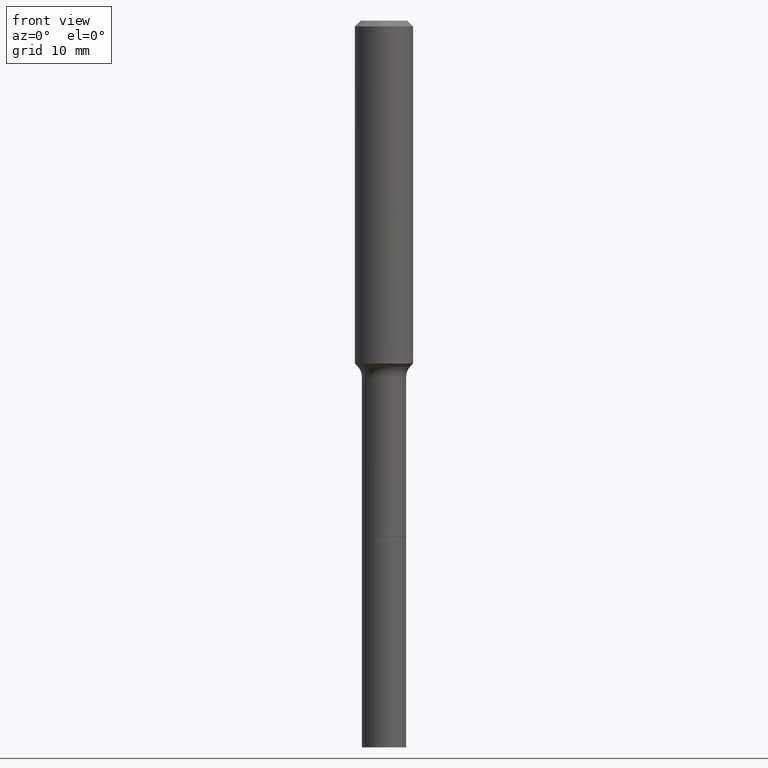
[diagram: clean part render]
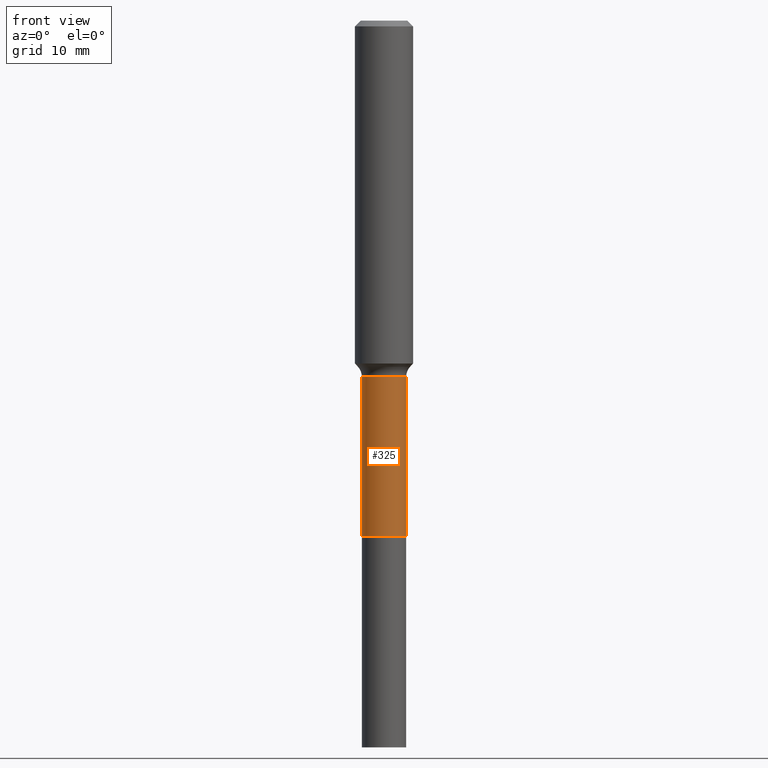
[diagram: same view with one face highlighted and labeled with its STEP entity id]
A machine part, front view. The second image highlights one B-rep face of the part: STEP entity #325.
In plain terms, the highlighted cylindrical surface (edge-blend (fillet) strip) has radius 3.0505 mm, axis along (-0, 0, 1).
Its self-contained STEP definition (entity closure, byte-faithful):
#3 = VECTOR ( 'NONE', #514, 39.37007874015748143 ) ;
#11 = FACE_OUTER_BOUND ( 'NONE', #122, .T. ) ;
#14 = VERTEX_POINT ( 'NONE', #257 ) ;
#22 = DIRECTION ( 'NONE',  ( -2.445468806185136597E-29, 3.491481338843145583E-15, 1.000000000000000000 ) ) ;
#38 = ORIENTED_EDGE ( 'NONE', *, *, #490, .F. ) ;
#43 = AXIS2_PLACEMENT_3D ( 'NONE', #195, #357, #158 ) ;
#118 = ORIENTED_EDGE ( 'NONE', *, *, #282, .T. ) ;
#122 = EDGE_LOOP ( 'NONE', ( #378, #118, #153, #38 ) ) ;
#123 = VERTEX_POINT ( 'NONE', #468 ) ;
#151 = EDGE_CURVE ( 'NONE', #123, #360, #245, .T. ) ;
#153 = ORIENTED_EDGE ( 'NONE', *, *, #151, .T. ) ;
#158 = DIRECTION ( 'NONE',  ( 1.000000000000000000, -6.982962677686271444E-15, 0.000000000000000000 ) ) ;
#171 = DIRECTION ( 'NONE',  ( 1.000000000000000000, -6.982962677686266711E-15, 4.876176775795936353E-29 ) ) ;
#195 = CARTESIAN_POINT ( 'NONE',  ( 6.833862578884363673E-29, -9.756944601397170777E-15, -2.794499999999999762 ) ) ;
#205 = LINE ( 'NONE', #248, #348 ) ;
#218 = CARTESIAN_POINT ( 'NONE',  ( -0.1200999999999999152, -7.392644226364920454E-15, -1.929000000000000270 ) ) ;
#220 = DIRECTION ( 'NONE',  ( -2.445468806185136597E-29, 3.491481338843145583E-15, 1.000000000000000000 ) ) ;
#245 = LINE ( 'NONE', #311, #3 ) ;
#248 = CARTESIAN_POINT ( 'NONE',  ( -0.1200999999999999707, 8.533618256478801148E-16, -5.907641043396140543E-30 ) ) ;
#257 = CARTESIAN_POINT ( 'NONE',  ( -0.1201000000000000539, -7.392644226364918876E-15, -2.794499999999999762 ) ) ;
#262 = DIRECTION ( 'NONE',  ( 1.000000000000000000, -6.982962677686261977E-15, 0.000000000000000000 ) ) ;
#270 = EDGE_CURVE ( 'NONE', #14, #375, #205, .T. ) ;
#272 = DIRECTION ( 'NONE',  ( -2.445468806185136877E-29, 3.491481338843145188E-15, 1.000000000000000000 ) ) ;
#282 = EDGE_CURVE ( 'NONE', #14, #123, #296, .T. ) ;
#292 = CARTESIAN_POINT ( 'NONE',  ( 0.1200999999999999152, -7.573721320218547694E-15, -1.929000000000000270 ) ) ;
#296 = CIRCLE ( 'NONE', #43, 0.1201000000000000401 ) ;
#311 = CARTESIAN_POINT ( 'NONE',  ( 0.1200999999999999707, -8.386538175901203898E-16, 5.856288307730917951E-30 ) ) ;
#325 = ADVANCED_FACE ( 'NONE', ( #11 ), #334, .T. ) ;
#334 = CYLINDRICAL_SURFACE ( 'NONE', #355, 0.1200999999999999707 ) ;
#345 = CARTESIAN_POINT ( 'NONE',  ( 4.717309327131129576E-29, -6.735067502628428981E-15, -1.929000000000000270 ) ) ;
#348 = VECTOR ( 'NONE', #272, 39.37007874015748143 ) ;
#355 = AXIS2_PLACEMENT_3D ( 'NONE', #466, #220, #171 ) ;
#357 = DIRECTION ( 'NONE',  ( -2.445468806185136597E-29, 3.491481338843145583E-15, 1.000000000000000000 ) ) ;
#360 = VERTEX_POINT ( 'NONE', #292 ) ;
#375 = VERTEX_POINT ( 'NONE', #218 ) ;
#378 = ORIENTED_EDGE ( 'NONE', *, *, #270, .F. ) ;
#389 = CIRCLE ( 'NONE', #477, 0.1200999999999999152 ) ;
#466 = CARTESIAN_POINT ( 'NONE',  ( 0.000000000000000000, 0.000000000000000000, 0.000000000000000000 ) ) ;
#468 = CARTESIAN_POINT ( 'NONE',  ( 0.1201000000000000401, -1.059559841898729107E-14, -2.794499999999999762 ) ) ;
#477 = AXIS2_PLACEMENT_3D ( 'NONE', #345, #22, #262 ) ;
#490 = EDGE_CURVE ( 'NONE', #375, #360, #389, .T. ) ;
#514 = DIRECTION ( 'NONE',  ( -2.445468806185136877E-29, 3.491481338843145188E-15, 1.000000000000000000 ) ) ;